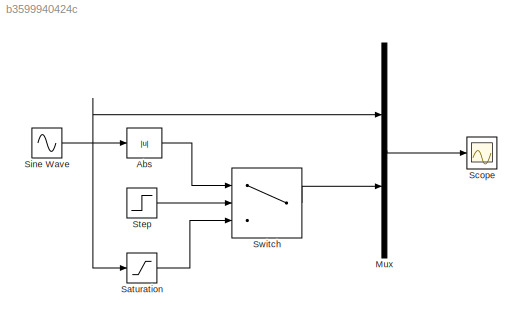
MODEL slx_b3599940424c
KIND model
CONFIG AbsTol = auto
CONFIG FixedStep = auto
CONFIG MaxStep = auto
CONFIG MinStep = auto
CONFIG RelTol = 1e-3
CONFIG SampleTimeConstraint = Unconstrained
CONFIG Solver = VariableStepAuto
CONFIG SolverMode = Auto
CONFIG SolverName = VariableStepAuto
CONFIG StartFcn = open_scope
CONFIG StartTime = 0.0
CONFIG StopTime = 10.0
BLOCK [Abs] Abs
  SaturateOnIntegerOverflow = off
BLOCK [Mux] Mux
  DisplayOption = bar
  Inputs = 2
  Ports = [2, 1]
BLOCK [Saturate] Saturation
  InputPortMap = u0
  Ports = [1, 1]
BLOCK [Scope] Scope
  Ports = [1]
  ScopeSpecificationString = Simulink.scopes.TimeScopeBlockCfg('CurrentConfiguration', extmgr.ConfigurationSet(extmgr.Configuration('Core','General UI',true),extmgr.Configuration('Core','Source UI',true),extmgr.Configuration('Sources','WiredSimulink',true),extmgr.Configuration('Visuals','Time Domain',true,'SerializedDisplays',{struct('MinYLimReal','-1.24861','MaxYLimReal','1.24861','YLabelReal','','MinYLimMag','0.00000','MaxY...<+1365ch>
BLOCK [Sin] Sine Wave
  Phase = [0.2 0.5]
  Ports = [0, 1]
  SampleTime = 0
BLOCK [Step] Step
  After = 0
  Before = 1
  SampleTime = 0
  Time = 5
BLOCK [Switch] Switch
  InputSameDT = off
  SaturateOnIntegerOverflow = off
  Threshold = 0.5
LINE Abs:1 -> Switch:1
LINE Mux:1 -> Scope:1
LINE Saturation:1 -> Switch:3
NET Sine Wave:1 -> Abs:1, Mux:1, Saturation:1
LINE Step:1 -> Switch:2
LINE Switch:1 -> Mux:2
note: NET lines group one-source signal fan-out (src -> all destinations, sorted); 1:1 wires keep LINE
